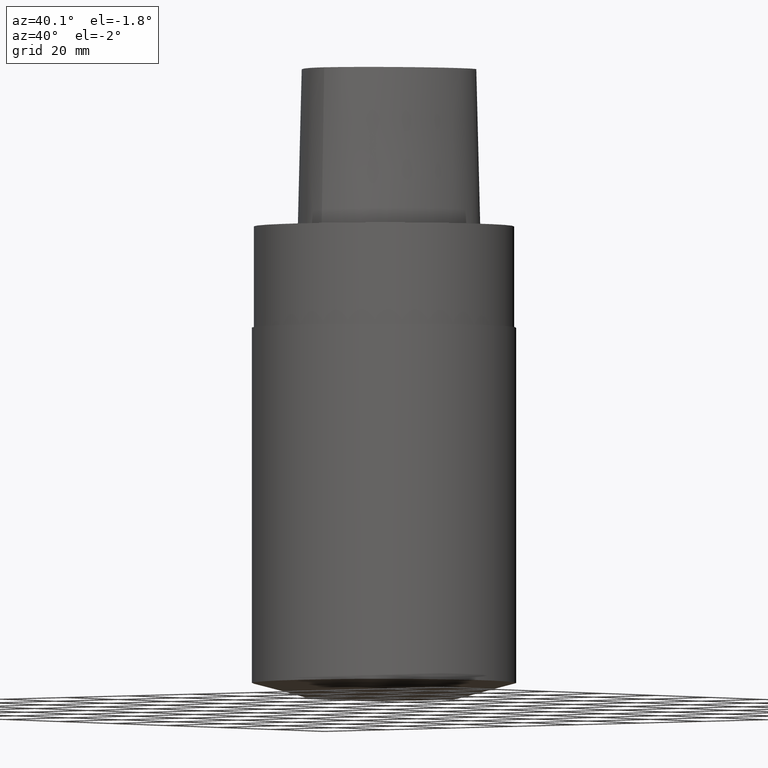
[diagram: clean part render]
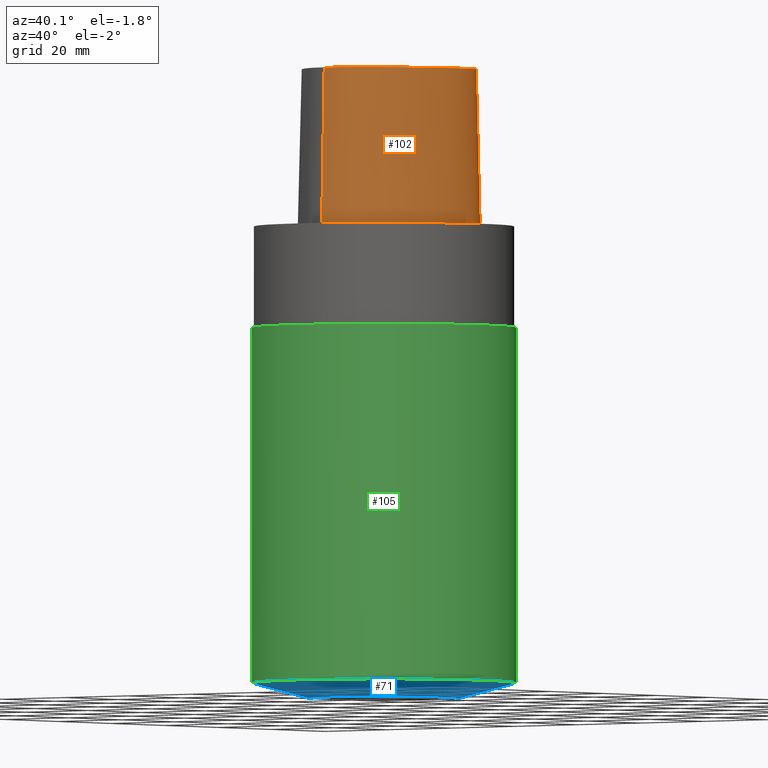
[diagram: same view with three faces highlighted in distinct colors, each labeled with its STEP entity id]
A machine part, auxiliary view with three faces highlighted in distinct colors.
Their STEP definitions:

[orange] entity #102 — the highlighted face is a freeform B-spline surface patch.
#52=EDGE_CURVE('Unnamed[1]',#130,#126,#131,.T.);
#54=EDGE_CURVE('Unnamed[1]',#133,#126,#134,.T.);
#81=EDGE_CURVE('Unnamed[1]',#136,#130,#171,.T.);
#94=EDGE_CURVE('Unnamed[1]',#133,#136,#188,.T.);
#102=ADVANCED_FACE('Unnamed[1]',(#199),#200,.T.);
#126=VERTEX_POINT('',#218);
#130=VERTEX_POINT('',#240);
#131=B_SPLINE_CURVE_WITH_KNOTS('',3,(#241,#242,#243,#244,#245,#246,#247,#248,#249,#250,#251,#252,#253,#254,#255,#256,#257),.UNSPECIFIED.,.F.,.F.,(4,1,1,1,1,1,1,1,1,1,1,1,1,1,4),(-13.2302678617486,-12.816821991069,-12.4033761203893,-11.9899302497097,-11.57648437903,-11.1630385083504,-10.9563155730106,-10.7495926376707,-10.3361467669911,-9.92270089631145,-9.09580915495216,-8.26891741359287,-7.44202567223358,-7.02857980155394,-6.6151339308743),.UNSPECIFIED.);
#133=VERTEX_POINT('',#260);
#134=LINE('',#261,#262);
#136=VERTEX_POINT('',#265);
#171=LINE('',#326,#327);
#188=B_SPLINE_CURVE_WITH_KNOTS('',3,(#419,#420,#421,#422,#423,#424,#425,#426,#427,#428,#429,#430,#431,#432,#433,#434),.UNSPECIFIED.,.F.,.F.,(4,1,1,1,1,1,1,1,1,1,1,1,1,4),(6.61513393087476,6.99917207152274,7.48193246986995,7.96289324787093,8.45540287038584,9.10291653679981,9.67129810936083,10.1618749681153,10.6358867802489,11.1080734988593,11.6043706019633,12.09451993853,12.6985979284494,13.2302678617486),.UNSPECIFIED.);
#199=FACE_OUTER_BOUND('',#448,.T.);
#200=B_SPLINE_SURFACE_WITH_KNOTS('',3,3,((#449,#450,#451,#452),(#453,#454,#455,#456),(#457,#458,#459,#460),(#461,#462,#463,#464),(#465,#466,#467,#468),(#469,#470,#471,#472),(#473,#474,#475,#476),(#477,#478,#479,#480),(#481,#482,#483,#484),(#485,#486,#487,#488),(#489,#490,#491,#492),(#493,#494,#495,#496),(#497,#498,#499,#500),(#501,#502,#503,#504),(#505,#506,#507,#508),(#509,#510,#511,#512),(#513,#514,#515,#516)),.UNSPECIFIED.,.F.,.F.,.F.,(4,1,1,1,1,1,1,1,1,1,1,1,1,1,4),(4,4),(-13.2302678617486,-12.816821991069,-12.4033761203893,-11.9899302497097,-11.57648437903,-11.1630385083504,-10.9563155730106,-10.7495926376707,-10.3361467669911,-9.92270089631145,-9.09580915495216,-8.26891741359287,-7.44202567223358,-7.02857980155394,-6.6151339308743),(-3.8,0.0),.UNSPECIFIED.);
#218=CARTESIAN_POINT('',(0.04359356758149,-23.4691235068931,7.78075697532443E-032));
#240=CARTESIAN_POINT('',(0.044682985379347,20.6765087343109,1.61778115328528E-031));
#241=CARTESIAN_POINT('',(0.044682985379347,20.6765087343109,1.61778115328528E-031));
#242=CARTESIAN_POINT('',(1.42379272427753,20.6097915814392,8.62816615085482E-032));
#243=CARTESIAN_POINT('',(4.2230955003445,20.4837538303966,1.4791141972894E-031));
#244=CARTESIAN_POINT('',(8.47220762821777,19.6890432607088,9.86076131526265E-032));
#245=CARTESIAN_POINT('',(12.5141247708253,18.2434968480404,0.0));
#246=CARTESIAN_POINT('',(16.3038624872874,16.1734192182143,1.97215226305253E-031));
#247=CARTESIAN_POINT('',(19.1446913988473,13.7036723639434,-1.97215226305253E-031));
#248=CARTESIAN_POINT('',(20.7319894342149,11.1014620996188,0.0));
#249=CARTESIAN_POINT('',(21.7831756505763,8.28099229708081,-1.97215226305253E-031));
#250=CARTESIAN_POINT('',(22.2258240701438,4.60865440596506,0.0));
#251=CARTESIAN_POINT('',(21.7436130080666,-1.11326526354485,0.0));
#252=CARTESIAN_POINT('',(19.5519487660502,-7.95432366164584,0.0));
#253=CARTESIAN_POINT('',(14.9574167123838,-15.2089785567293,0.0));
#254=CARTESIAN_POINT('',(9.66840283021945,-20.0827414369705,-9.86076131526265E-032));
#255=CARTESIAN_POINT('',(4.51628650521788,-22.7946374572188,-9.86076131526265E-032));
#256=CARTESIAN_POINT('',(1.55867251738073,-23.4612972770043,-1.23259516440783E-032));
#257=CARTESIAN_POINT('',(0.04359356758149,-23.4691235068931,7.78075697532443E-032));
#260=CARTESIAN_POINT('',(0.038736923393866,-22.5191997536361,38.0));
#261=CARTESIAN_POINT('',(0.038736923393866,-22.5191997536361,38.0));
#262=VECTOR('',#527,38.0118715498723);
#265=CARTESIAN_POINT('',(-0.001218547003662,19.7276821925089,38.0));
#326=CARTESIAN_POINT('',(-0.001218547003662,19.7276821925089,38.0));
#327=VECTOR('',#568,38.0118715503078);
#419=CARTESIAN_POINT('',(0.038736923394311,-22.519199753636,38.0));
#420=CARTESIAN_POINT('',(1.31742058183662,-22.512662269405,38.0));
#421=CARTESIAN_POINT('',(4.2093773447498,-21.9116226439989,38.0));
#422=CARTESIAN_POINT('',(8.20895504542113,-19.7798683845067,38.0));
#423=CARTESIAN_POINT('',(11.9784633234593,-16.681663904162,38.0));
#424=CARTESIAN_POINT('',(15.5308821579362,-12.5807487594113,38.0));
#425=CARTESIAN_POINT('',(18.4566248438667,-7.64932246015528,38.0));
#426=CARTESIAN_POINT('',(20.4036090752029,-2.27012499825289,38.0));
#427=CARTESIAN_POINT('',(21.2357187429189,2.79891401173156,38.0));
#428=CARTESIAN_POINT('',(21.0811206267748,7.62543090736657,38.0));
#429=CARTESIAN_POINT('',(19.3383577336563,12.2772250726194,38.0));
#430=CARTESIAN_POINT('',(15.5796322014404,15.5799672120682,38.0));
#431=CARTESIAN_POINT('',(10.8392956074438,17.9834601687347,38.0));
#432=CARTESIAN_POINT('',(5.56068045850571,19.4586143858472,38.0));
#433=CARTESIAN_POINT('',(1.77223893711014,19.6418877095654,38.0));
#434=CARTESIAN_POINT('',(-0.001218367817519,19.7276822012873,38.0));
#448=EDGE_LOOP('',(#596,#597,#598,#599));
#449=CARTESIAN_POINT('',(-0.001218367817519,19.7276822012873,38.0));
#450=CARTESIAN_POINT('',(0.014082083248157,20.0439577123075,25.3333333333066));
#451=CARTESIAN_POINT('',(0.029382534313671,20.3602332232908,12.6666666666934));
#452=CARTESIAN_POINT('',(0.044682985379347,20.6765087343109,1.61778115328528E-031));
#453=CARTESIAN_POINT('',(1.37788651195108,19.6609652834875,38.0));
#454=CARTESIAN_POINT('',(1.3931885827258,19.9772407169847,25.3333333333066));
#455=CARTESIAN_POINT('',(1.40849065356095,20.2935162254648,12.6666666666934));
#456=CARTESIAN_POINT('',(1.42379272427753,20.6097915814392,8.62816615085482E-032));
#457=CARTESIAN_POINT('',(4.135446440878,19.5347778787784,38.0));
#458=CARTESIAN_POINT('',(4.16466278851883,19.8511031866125,25.3333333333066));
#459=CARTESIAN_POINT('',(4.1938791526746,20.1674284644204,12.6666666666934));
#460=CARTESIAN_POINT('',(4.2230955003445,20.4837538303966,1.4791141972894E-031));
#461=CARTESIAN_POINT('',(8.213607363795,18.7706026638736,38.0));
#462=CARTESIAN_POINT('',(8.29980745008421,19.0767495109635,25.3333333333066));
#463=CARTESIAN_POINT('',(8.38600751285747,19.3828964329996,12.6666666666934));
#464=CARTESIAN_POINT('',(8.47220762821777,19.6890432607088,9.86076131526265E-032));
#465=CARTESIAN_POINT('',(12.1316338645671,17.3698624840857,38.0));
#466=CARTESIAN_POINT('',(12.2591308270381,17.6610739397708,25.3333333333066));
#467=CARTESIAN_POINT('',(12.3866278083543,17.9522853923553,12.6666666666934));
#468=CARTESIAN_POINT('',(12.5141247708253,18.2434968480404,0.0));
#469=CARTESIAN_POINT('',(15.7706546153679,15.3789501349612,38.0));
#470=CARTESIAN_POINT('',(15.9483905900895,15.6437731794811,25.3333333333066));
#471=CARTESIAN_POINT('',(16.1261265513272,15.9085961736944,12.6666666666934));
#472=CARTESIAN_POINT('',(16.3038624872874,16.1734192182143,1.97215226305253E-031));
#473=CARTESIAN_POINT('',(18.4265894256284,13.0570022172893,38.0));
#474=CARTESIAN_POINT('',(18.6659567517146,13.2725589420689,25.3333333333066));
#475=CARTESIAN_POINT('',(18.9053240921419,13.4881156488541,12.6666666666934));
#476=CARTESIAN_POINT('',(19.1446913988473,13.7036723639434,-1.97215226305253E-031));
#477=CARTESIAN_POINT('',(19.8679958653038,10.6923771981998,38.0));
#478=CARTESIAN_POINT('',(20.1559937048299,10.8287388264873,25.3333333333066));
#479=CARTESIAN_POINT('',(20.4439915656177,10.965100461641,12.6666666666934));
#480=CARTESIAN_POINT('',(20.7319894342149,11.1014620996188,0.0));
#481=CARTESIAN_POINT('',(20.8470867582337,8.07149548576131,38.0));
#482=CARTESIAN_POINT('',(21.1591164072431,8.14132775555392,25.3333333333066));
#483=CARTESIAN_POINT('',(21.4711459821861,8.21116003697855,12.6666666666934));
#484=CARTESIAN_POINT('',(21.7831756505763,8.28099229708081,-1.97215226305253E-031));
#485=CARTESIAN_POINT('',(21.2693244256982,4.61157245650171,38.0));
#486=CARTESIAN_POINT('',(21.5881576801997,4.6105997689982,25.3333333333066));
#487=CARTESIAN_POINT('',(21.9069908544037,4.60962709346857,12.6666666666934));
#488=CARTESIAN_POINT('',(22.2258240701438,4.60865440596506,0.0));
#489=CARTESIAN_POINT('',(20.8071610855575,-0.912828649855193,38.0));
#490=CARTESIAN_POINT('',(21.119311671178,-0.979640884839481,25.3333333333066));
#491=CARTESIAN_POINT('',(21.4314624224461,-1.04645306732201,12.6666666666934));
#492=CARTESIAN_POINT('',(21.7436130080666,-1.11326526354485,0.0));
#493=CARTESIAN_POINT('',(18.6841935581315,-7.54428794252837,38.0));
#494=CARTESIAN_POINT('',(18.9734452551861,-7.6809665891091,25.3333333333066));
#495=CARTESIAN_POINT('',(19.2626970689956,-7.81764505382656,12.6666666666934));
#496=CARTESIAN_POINT('',(19.5519487660502,-7.95432366164584,0.0));
#497=CARTESIAN_POINT('',(14.2175552814,-14.5971504342323,38.0));
#498=CARTESIAN_POINT('',(14.4641757465198,-14.8010930946929,25.3333333333066));
#499=CARTESIAN_POINT('',(14.710796247264,-15.0050359737917,12.6666666666934));
#500=CARTESIAN_POINT('',(14.9574167123838,-15.2089785567293,0.0));
#501=CARTESIAN_POINT('',(9.0844808732933,-19.3179298129689,38.0));
#502=CARTESIAN_POINT('',(9.27912152349017,-19.572866915557,25.3333333333066));
#503=CARTESIAN_POINT('',(9.47376218971294,-19.827804295621,12.6666666666934));
#504=CARTESIAN_POINT('',(9.66840283021945,-20.0827414369705,-9.86076131526265E-032));
#505=CARTESIAN_POINT('',(4.17112919194182,-21.8987568152736,38.0));
#506=CARTESIAN_POINT('',(4.28618163483998,-22.1973837173649,25.3333333333066));
#507=CARTESIAN_POINT('',(4.40123406239433,-22.4960105163661,12.6666666666934));
#508=CARTESIAN_POINT('',(4.51628650521788,-22.7946374572188,-9.86076131526265E-032));
#509=CARTESIAN_POINT('',(1.41533654381097,-22.5120888467812,38.0));
#510=CARTESIAN_POINT('',(1.46311520162011,-22.8284916374445,25.3333333333066));
#511=CARTESIAN_POINT('',(1.51089385942236,-23.144894486341,12.6666666666934));
#512=CARTESIAN_POINT('',(1.55867251738073,-23.4612972770043,-1.23259516440783E-032));
#513=CARTESIAN_POINT('',(0.038736923393866,-22.5191997536361,38.0));
#514=CARTESIAN_POINT('',(0.04035580478973,-22.8358410047159,25.3333333333066));
#515=CARTESIAN_POINT('',(0.041974686185626,-23.1524822558133,12.6666666666934));
#516=CARTESIAN_POINT('',(0.04359356758149,-23.4691235068931,7.78075697532443E-032));
#527=DIRECTION('',(0.000127766510556,-0.024990186342461,-0.999687688361864));
#568=DIRECTION('',(0.001207557810519,0.024961321374199,-0.999687688350411));
#596=ORIENTED_EDGE('',*,*,#52,.F.);
#597=ORIENTED_EDGE('',*,*,#81,.F.);
#598=ORIENTED_EDGE('',*,*,#94,.F.);
#599=ORIENTED_EDGE('',*,*,#54,.T.);

[blue] entity #71 — the highlighted conical surface has half-angle 75 deg.
#48=EDGE_CURVE('Unnamed[1]',#123,#123,#124,.T.);
#61=EDGE_CURVE('Unnamed[1]',#143,#143,#144,.T.);
#71=ADVANCED_FACE('Unnamed[1]',(#156,#157),#158,.T.);
#123=VERTEX_POINT('',#214);
#124=CIRCLE('',#215,18.0000000000003);
#143=VERTEX_POINT('',#289);
#144=CIRCLE('',#290,32.0000000000501);
#156=FACE_BOUND('',#307,.T.);
#157=FACE_BOUND('',#308,.T.);
#158=CONICAL_SURFACE('',#309,25.0000000000252,1.30899693899575);
#214=CARTESIAN_POINT('',(6.99885645712713E-015,18.0000000000003,-114.3));
#215=AXIS2_PLACEMENT_3D('',#524,#525,#526);
#289=CARTESIAN_POINT('',(6.76915627253489E-015,32.0000000000502,-110.548711305951));
#290=AXIS2_PLACEMENT_3D('',#534,#535,#536);
#307=EDGE_LOOP('',(#547));
#308=EDGE_LOOP('',(#548));
#309=AXIS2_PLACEMENT_3D('',#549,#550,#551);
#524=CARTESIAN_POINT('',(6.99885645712713E-015,1.39977129142543E-014,-114.3));
#525=DIRECTION('',(6.12323399573677E-017,1.22464679914735E-016,-1.0));
#526=DIRECTION('',(-1.23259516440783E-032,1.0,1.22464679914735E-016));
#534=CARTESIAN_POINT('',(6.76915627253489E-015,1.35383125450698E-014,-110.548711305951));
#535=DIRECTION('',(6.12323399573676E-017,1.22464679914735E-016,-1.0));
#536=DIRECTION('',(-1.23259516440783E-032,1.0,1.22464679914735E-016));
#547=ORIENTED_EDGE('',*,*,#48,.F.);
#548=ORIENTED_EDGE('',*,*,#61,.T.);
#549=CARTESIAN_POINT('',(6.88400636483101E-015,1.3768012729662E-014,-112.424355652976));
#550=DIRECTION('',(-6.12323399573677E-017,-1.22464679914735E-016,1.0));
#551=DIRECTION('',(-1.23259516440783E-032,1.0,1.22464679914735E-016));

[green] entity #105 — the highlighted cylindrical surface (bore or boss wall) has radius 32 mm, axis along (0, 0, -1).
#61=EDGE_CURVE('Unnamed[1]',#143,#143,#144,.T.);
#86=EDGE_CURVE('Unnamed[1]',#178,#178,#179,.T.);
#105=ADVANCED_FACE('Unnamed[1]',(#203,#204),#205,.T.);
#143=VERTEX_POINT('',#289);
#144=CIRCLE('',#290,32.0000000000501);
#178=VERTEX_POINT('',#336);
#179=CIRCLE('',#337,31.9999999999999);
#203=FACE_BOUND('',#520,.T.);
#204=FACE_BOUND('',#521,.T.);
#205=CYLINDRICAL_SURFACE('',#522,32.000000000025);
#289=CARTESIAN_POINT('',(6.76915627253489E-015,32.0000000000502,-110.548711305951));
#290=AXIS2_PLACEMENT_3D('',#534,#535,#536);
#336=CARTESIAN_POINT('',(1.50019232895551E-015,31.9999999999999,-24.5));
#337=AXIS2_PLACEMENT_3D('',#577,#578,#579);
#520=EDGE_LOOP('',(#601));
#521=EDGE_LOOP('',(#602));
#522=AXIS2_PLACEMENT_3D('',#603,#604,#605);
#534=CARTESIAN_POINT('',(6.76915627253489E-015,1.35383125450698E-014,-110.548711305951));
#535=DIRECTION('',(6.12323399573676E-017,1.22464679914735E-016,-1.0));
#536=DIRECTION('',(-1.23259516440783E-032,1.0,1.22464679914735E-016));
#577=CARTESIAN_POINT('',(1.50019232895551E-015,3.00038465791101E-015,-24.5));
#578=DIRECTION('',(6.12323399573677E-017,1.22464679914735E-016,-1.0));
#579=DIRECTION('',(-1.23259516440783E-032,1.0,1.22464679914735E-016));
#601=ORIENTED_EDGE('',*,*,#61,.F.);
#602=ORIENTED_EDGE('',*,*,#86,.T.);
#603=CARTESIAN_POINT('',(4.1346743007452E-015,8.26934860149039E-015,-67.5243556529755));
#604=DIRECTION('',(6.12323399573677E-017,1.22464679914735E-016,-1.0));
#605=DIRECTION('',(-1.23259516440783E-032,1.0,1.22464679914735E-016));